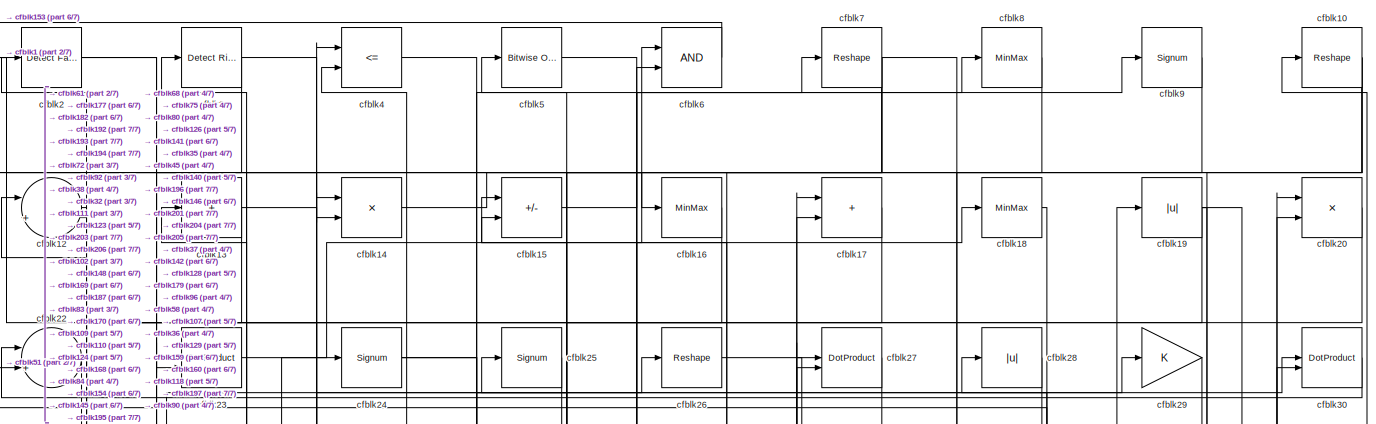
[diagram: root canvas - part 1/7, full width, top band]
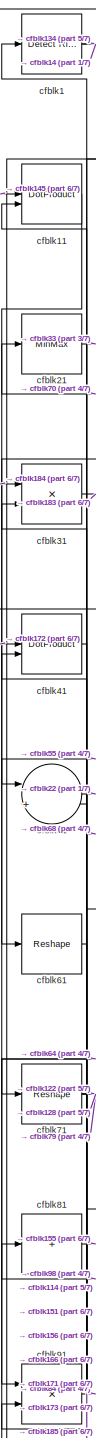
[diagram: root canvas - part 2/7, top left region]
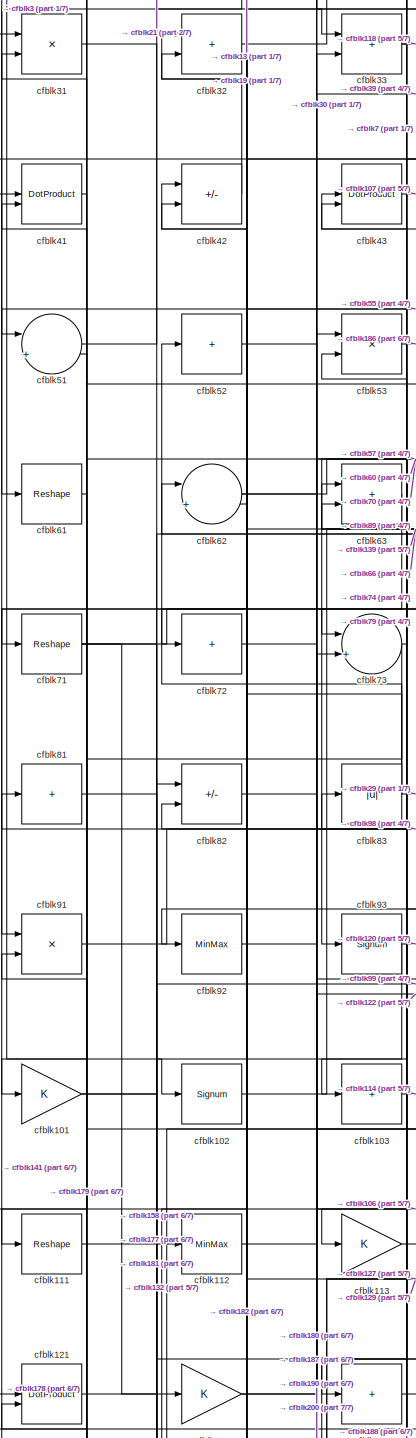
[diagram: root canvas - part 3/7, middle left region]
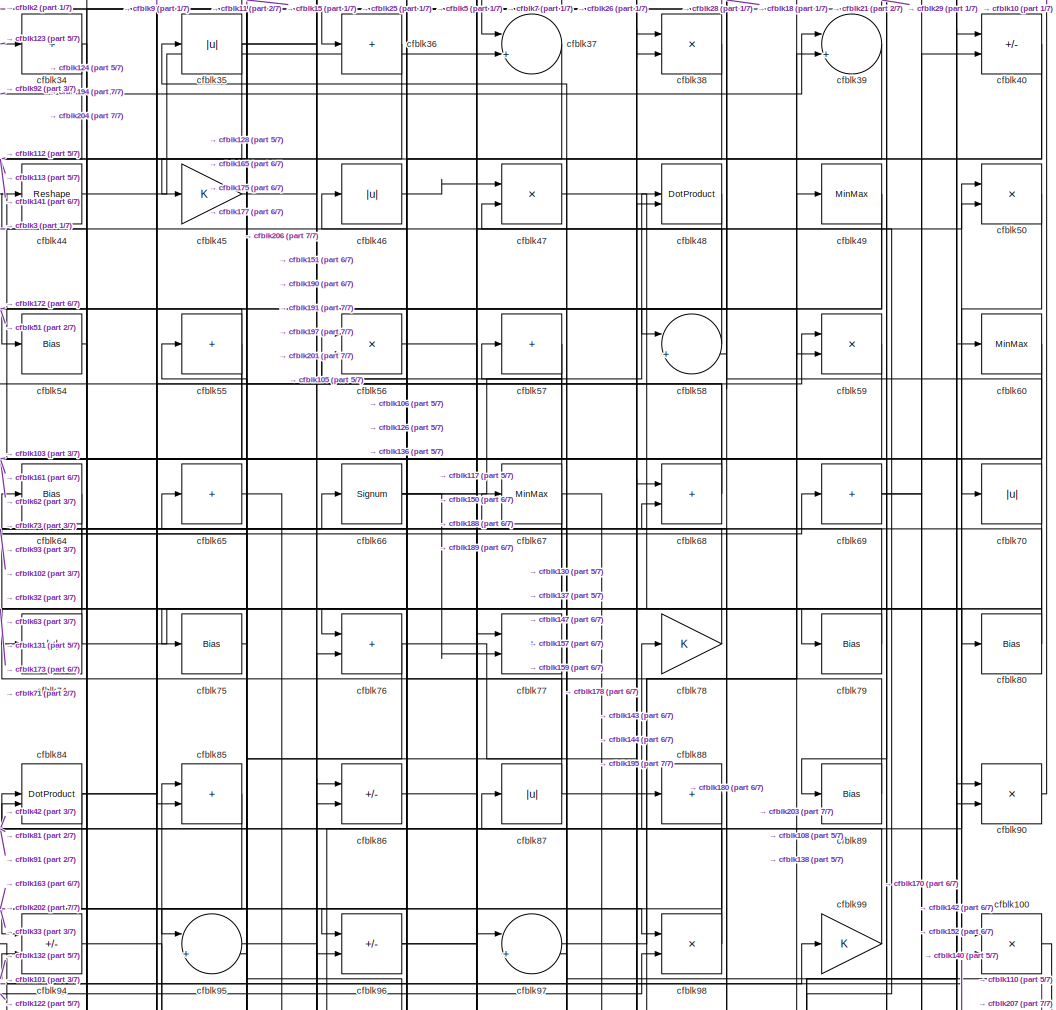
[diagram: root canvas - part 4/7, top center region]
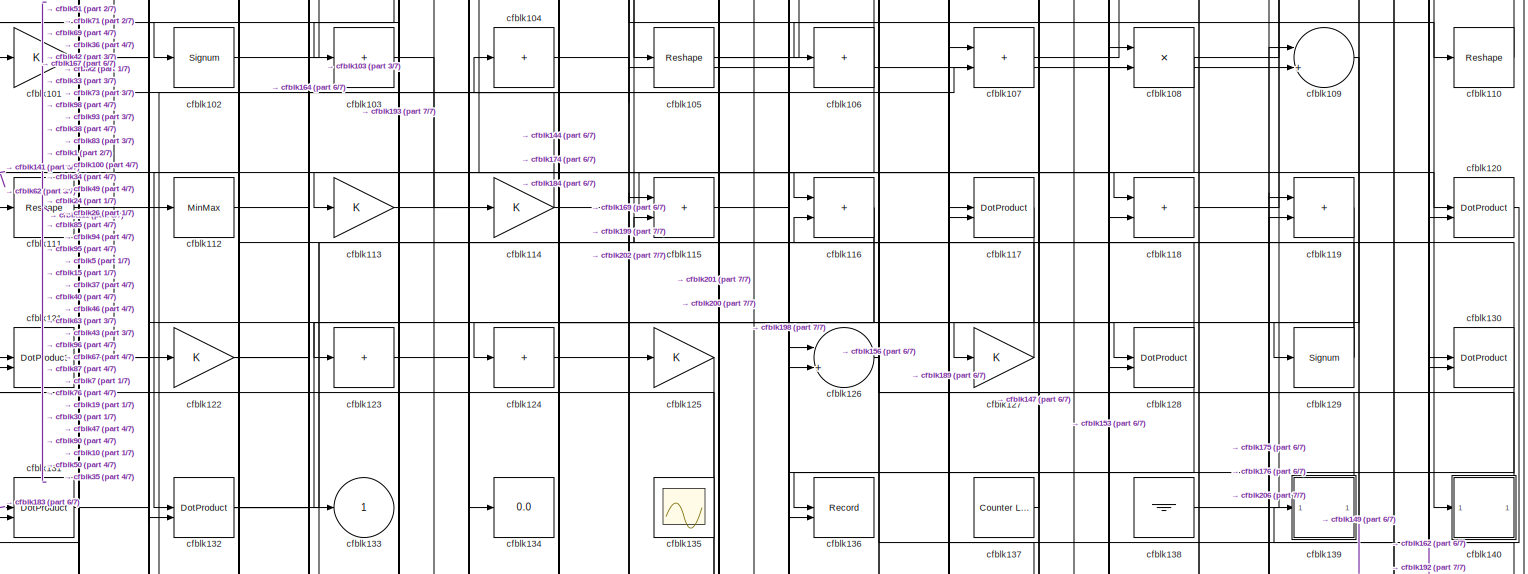
[diagram: root canvas - part 5/7, full width, middle band]
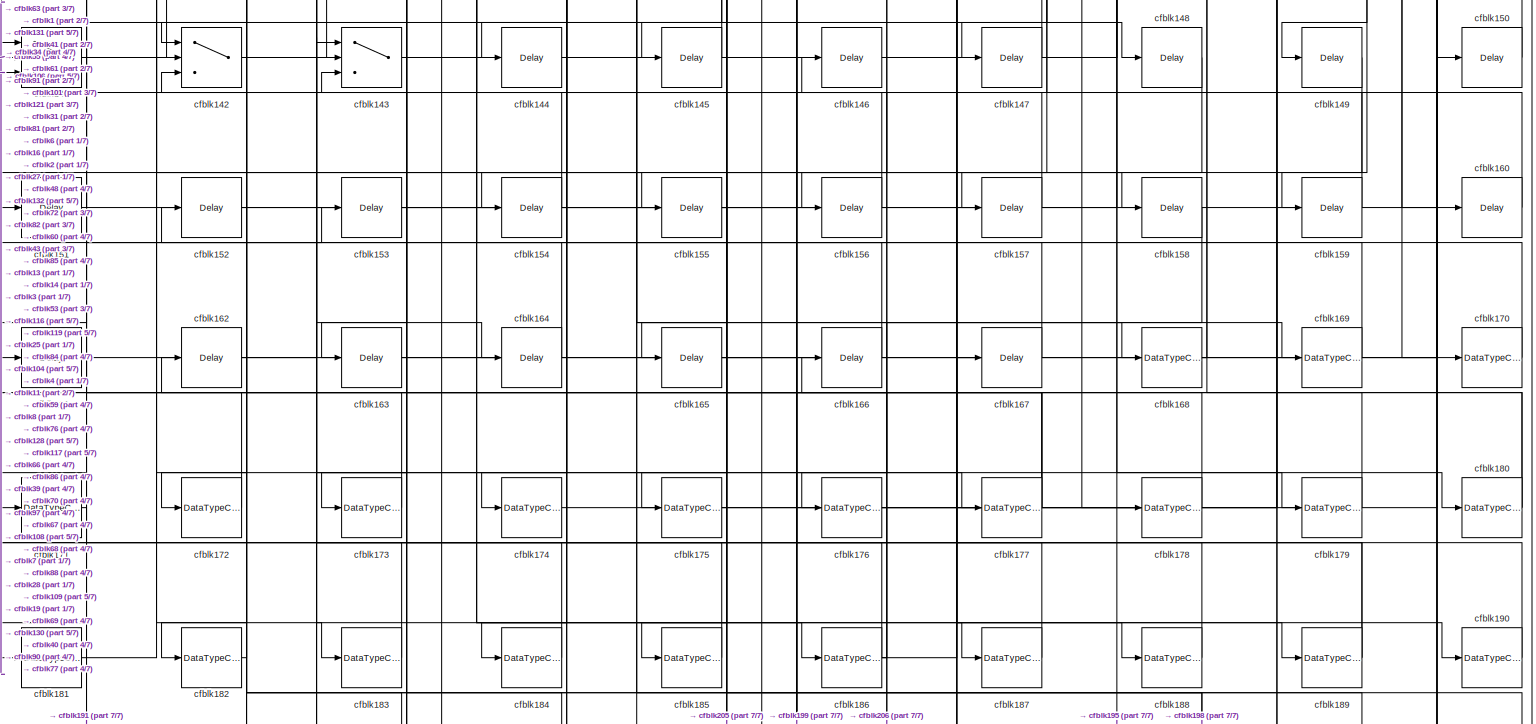
[diagram: root canvas - part 6/7, full width, bottom band]
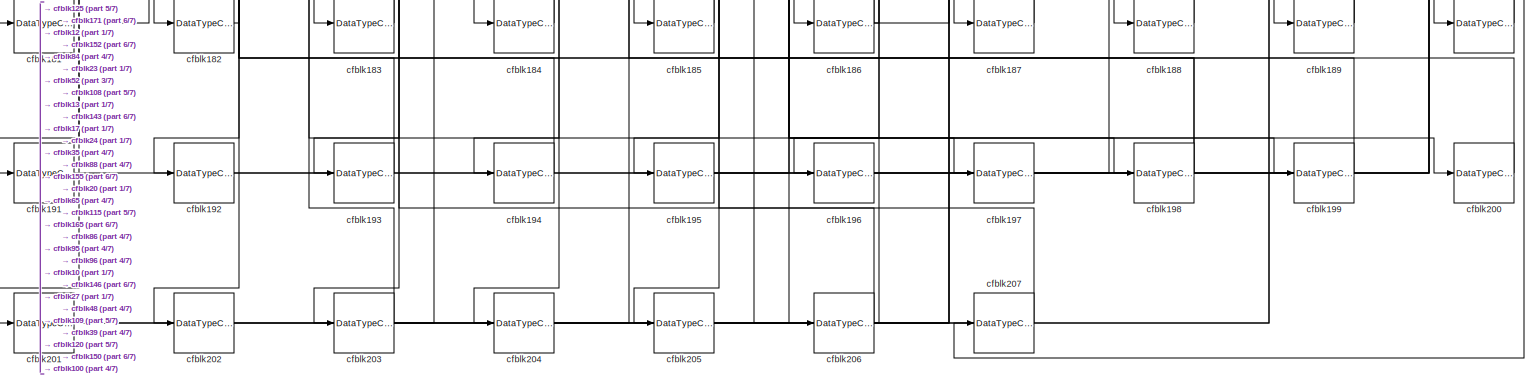
[diagram: root canvas - part 7/7, full width, bottom band]
MODEL slx_193301872688
KIND model
CONFIG AbsTol = auto
CONFIG EnableMultiTasking = off
CONFIG FixedStep = auto
CONFIG MaxStep = auto
CONFIG MinStep = auto
CONFIG RelTol = 1e-3
CONFIG SampleTimeConstraint = Unconstrained
CONFIG SolverName = VariableStepAuto
CONFIG StartTime = 0.0
CONFIG StopTime = 10.0
BLOCK [Reference] cfblk1  REF=hdlsllib/Logic and Bit
Operations/Detect Rise
Positive
  SourceBlock = hdlsllib/Logic and Bit\nOperations/Detect Rise\nPositive
  SourceType = Detect Rise Positive
BLOCK [Reshape] cfblk10
BLOCK [Product] cfblk100
  Inputs = */
  RndMeth = Zero
  SaturateOnIntegerOverflow = on
BLOCK [Gain] cfblk101
BLOCK [Signum] cfblk102
BLOCK [Sum] cfblk103
  IconShape = rectangular
  Inputs = +
BLOCK [Sum] cfblk104
  IconShape = rectangular
  Inputs = +
BLOCK [Reshape] cfblk105
BLOCK [Sum] cfblk106
  IconShape = rectangular
  Inputs = +
BLOCK [Sum] cfblk107
  IconShape = rectangular
BLOCK [Product] cfblk108
  Inputs = */
  RndMeth = Zero
  SaturateOnIntegerOverflow = on
BLOCK [Sum] cfblk109
  Inputs = |++
BLOCK [DotProduct] cfblk11
  OutDataTypeStr = Inherit: Inherit via internal rule
BLOCK [Reshape] cfblk110
BLOCK [Reshape] cfblk111
BLOCK [MinMax] cfblk112
BLOCK [Gain] cfblk113
BLOCK [Gain] cfblk114
BLOCK [Sum] cfblk115
  IconShape = rectangular
BLOCK [Sum] cfblk116
  IconShape = rectangular
BLOCK [DotProduct] cfblk117
  OutDataTypeStr = Inherit: Inherit via internal rule
BLOCK [Sum] cfblk118
  IconShape = rectangular
BLOCK [Sum] cfblk119
  IconShape = rectangular
BLOCK [Sum] cfblk12
  Inputs = |++
BLOCK [DotProduct] cfblk120
  OutDataTypeStr = Inherit: Inherit via internal rule
BLOCK [DotProduct] cfblk121
  OutDataTypeStr = Inherit: Inherit via internal rule
BLOCK [Gain] cfblk122
BLOCK [Sum] cfblk123
  IconShape = rectangular
  Inputs = +
BLOCK [Sum] cfblk124
  IconShape = rectangular
  Inputs = +
BLOCK [Gain] cfblk125
BLOCK [Sum] cfblk126
  Inputs = |++
BLOCK [Gain] cfblk127
BLOCK [DotProduct] cfblk128
  OutDataTypeStr = Inherit: Inherit via internal rule
BLOCK [Signum] cfblk129
BLOCK [Sum] cfblk13
  IconShape = rectangular
  Inputs = +
BLOCK [DotProduct] cfblk130
  OutDataTypeStr = Inherit: Inherit via internal rule
BLOCK [DotProduct] cfblk131
  OutDataTypeStr = Inherit: Inherit via internal rule
BLOCK [DotProduct] cfblk132
  OutDataTypeStr = Inherit: Inherit via internal rule
BLOCK [Outport] cfblk133
  VectorParamsAs1DForOutWhenUnconnected = off
BLOCK [Display] cfblk134
  Decimation = 1
BLOCK [Scope] cfblk135
  Floating = on
  NumInputPorts = 1
  ScopeSpecificationString = Simulink.scopes.TimeScopeBlockCfg('CurrentConfiguration', extmgr.ConfigurationSet(extmgr.Configuration('Core','General UI',true,'FigureColor',[0.156862745098039 0.156862745098039 0.156862745098039]),extmgr.Configuration('Core','Source UI',true),extmgr.Configuration('Sources','WiredSimulink',true,'DataLoggingVariableName','ScopeData1','DataLoggingSaveFormat','StructureWithTime','DataLoggingLimitDat...<+2713ch>
BLOCK [Record] cfblk136
  CompatibilityTag = XY
  FileSettingsInternal = {"entries":[{"content":{"excelSettings":{"content":{},"type":"Streamout.ExcelSettings"}},"type":"Streamout.FileSettingStorage","uuid":""}],"packageUris":["http:\/\/schema.mathworks.com\/mf0\/streamout_blocks\/R2020a"],"version":"1.0"}
  Layout = [1 1]
  SignalsInternal = {"entries":[{"content":{"signals":[{"content":{"blockPath":[],"dimensions":[1],"domain":"","lineColor":"#a2142f","plots":[1],"port":1,"sid":[""],"signalID":2796,"signalName":"cfblk40"},"type":"RecordBlkView.Signal","uuid":""},{"content":{"blockPath":[],"dimensions":[1],"domain":"","lineColor":"#139fff","plots":[1],"port":2,"sid":[""],"signalID":2800,"signalName":"cfblk130"},"type":"RecordBlkView.S...<+163ch>
  VisualizationBindings = {"xyplotplugin":{"info":[{"series":[{"bindingParametersList":[{"parameter":"X-Axis","signalID":2796,"signalName":"cfblk40"},{"parameter":"Y-Axis","signalID":2800,"signalName":"cfblk130"}],"seriesID":31174}],"subplotID":1}]}}
  st = -1
BLOCK [Reference] cfblk137  REF=hdlsllib/Sources/Counter
Limited
  SourceBlock = hdlsllib/Sources/Counter\nLimited
  SourceType = Counter Limited
BLOCK [Ground] cfblk138
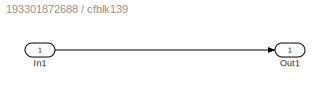
BLOCK [SubSystem] cfblk139
  LibrarySourceBlock = hdlsllib/Ports &\nSubsystems/Subsystem
BLOCK [Inport] cfblk139/In1
BLOCK [Outport] cfblk139/Out1
BLOCK [Product] cfblk14
  Inputs = */
  RndMeth = Zero
  SaturateOnIntegerOverflow = on
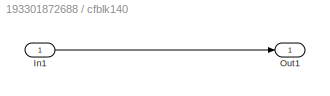
BLOCK [SubSystem] cfblk140
  LibrarySourceBlock = hdlsllib/Ports &\nSubsystems/Subsystem
BLOCK [Inport] cfblk140/In1
BLOCK [Outport] cfblk140/Out1
BLOCK [Switch] cfblk141
  InputSameDT = off
  SaturateOnIntegerOverflow = off
BLOCK [Switch] cfblk142
  InputSameDT = off
  SaturateOnIntegerOverflow = off
BLOCK [Switch] cfblk143
  InputSameDT = off
  SaturateOnIntegerOverflow = off
BLOCK [Delay] cfblk144
  InputPortMap = u0
  SampleTime = 1
BLOCK [Delay] cfblk145
  InputPortMap = u0
  SampleTime = 1
BLOCK [Delay] cfblk146
  InputPortMap = u0
  SampleTime = 1
BLOCK [Delay] cfblk147
  InputPortMap = u0
  SampleTime = 1
BLOCK [Delay] cfblk148
  InputPortMap = u0
  SampleTime = 1
BLOCK [Delay] cfblk149
  InputPortMap = u0
  SampleTime = 1
BLOCK [Sum] cfblk15
  IconShape = rectangular
  Inputs = +-
BLOCK [Delay] cfblk150
  InputPortMap = u0
  SampleTime = 1
BLOCK [Delay] cfblk151
  InputPortMap = u0
  SampleTime = 1
BLOCK [Delay] cfblk152
  InputPortMap = u0
  SampleTime = 1
BLOCK [Delay] cfblk153
  InputPortMap = u0
  SampleTime = 1
BLOCK [Delay] cfblk154
  InputPortMap = u0
  SampleTime = 1
BLOCK [Delay] cfblk155
  InputPortMap = u0
  SampleTime = 1
BLOCK [Delay] cfblk156
  InputPortMap = u0
  SampleTime = 1
BLOCK [Delay] cfblk157
  InputPortMap = u0
  SampleTime = 1
BLOCK [Delay] cfblk158
  InputPortMap = u0
  SampleTime = 1
BLOCK [Delay] cfblk159
  InputPortMap = u0
  SampleTime = 1
BLOCK [MinMax] cfblk16
BLOCK [Delay] cfblk160
  InputPortMap = u0
  SampleTime = 1
BLOCK [Delay] cfblk161
  InputPortMap = u0
  SampleTime = 1
BLOCK [Delay] cfblk162
  InputPortMap = u0
  SampleTime = 1
BLOCK [Delay] cfblk163
  InputPortMap = u0
  SampleTime = 1
BLOCK [Delay] cfblk164
  InputPortMap = u0
  SampleTime = 1
BLOCK [Delay] cfblk165
  InputPortMap = u0
  SampleTime = 1
BLOCK [Delay] cfblk166
  InputPortMap = u0
  SampleTime = 1
BLOCK [Delay] cfblk167
  InputPortMap = u0
  SampleTime = 1
BLOCK [DataTypeConversion] cfblk168
  OutDataTypeStr = uint8
  RndMeth = Floor
  SaturateOnIntegerOverflow = off
BLOCK [DataTypeConversion] cfblk169
  OutDataTypeStr = uint8
  RndMeth = Floor
  SaturateOnIntegerOverflow = off
BLOCK [Sum] cfblk17
  IconShape = rectangular
BLOCK [DataTypeConversion] cfblk170
  OutDataTypeStr = uint8
  RndMeth = Floor
  SaturateOnIntegerOverflow = off
BLOCK [DataTypeConversion] cfblk171
  OutDataTypeStr = uint8
  RndMeth = Floor
  SaturateOnIntegerOverflow = off
BLOCK [DataTypeConversion] cfblk172
  OutDataTypeStr = uint8
  RndMeth = Floor
  SaturateOnIntegerOverflow = off
BLOCK [DataTypeConversion] cfblk173
  OutDataTypeStr = uint8
  RndMeth = Floor
  SaturateOnIntegerOverflow = off
BLOCK [DataTypeConversion] cfblk174
  OutDataTypeStr = uint8
  RndMeth = Floor
  SaturateOnIntegerOverflow = off
BLOCK [DataTypeConversion] cfblk175
  OutDataTypeStr = uint8
  RndMeth = Floor
  SaturateOnIntegerOverflow = off
BLOCK [DataTypeConversion] cfblk176
  OutDataTypeStr = uint8
  RndMeth = Floor
  SaturateOnIntegerOverflow = off
BLOCK [DataTypeConversion] cfblk177
  RndMeth = Floor
  SaturateOnIntegerOverflow = off
BLOCK [DataTypeConversion] cfblk178
  OutDataTypeStr = uint8
  RndMeth = Floor
  SaturateOnIntegerOverflow = off
BLOCK [DataTypeConversion] cfblk179
  OutDataTypeStr = uint8
  RndMeth = Floor
  SaturateOnIntegerOverflow = off
BLOCK [MinMax] cfblk18
BLOCK [DataTypeConversion] cfblk180
  RndMeth = Floor
  SaturateOnIntegerOverflow = off
BLOCK [DataTypeConversion] cfblk181
  OutDataTypeStr = uint8
  RndMeth = Floor
  SaturateOnIntegerOverflow = off
BLOCK [DataTypeConversion] cfblk182
  OutDataTypeStr = uint8
  RndMeth = Floor
  SaturateOnIntegerOverflow = off
BLOCK [DataTypeConversion] cfblk183
  OutDataTypeStr = uint8
  RndMeth = Floor
  SaturateOnIntegerOverflow = off
BLOCK [DataTypeConversion] cfblk184
  OutDataTypeStr = uint8
  RndMeth = Floor
  SaturateOnIntegerOverflow = off
BLOCK [DataTypeConversion] cfblk185
  OutDataTypeStr = uint8
  RndMeth = Floor
  SaturateOnIntegerOverflow = off
BLOCK [DataTypeConversion] cfblk186
  RndMeth = Floor
  SaturateOnIntegerOverflow = off
BLOCK [DataTypeConversion] cfblk187
  OutDataTypeStr = uint8
  RndMeth = Floor
  SaturateOnIntegerOverflow = off
BLOCK [DataTypeConversion] cfblk188
  OutDataTypeStr = uint8
  RndMeth = Floor
  SaturateOnIntegerOverflow = off
BLOCK [DataTypeConversion] cfblk189
  RndMeth = Floor
  SaturateOnIntegerOverflow = off
BLOCK [Abs] cfblk19
  SaturateOnIntegerOverflow = off
BLOCK [DataTypeConversion] cfblk190
  OutDataTypeStr = uint8
  RndMeth = Floor
  SaturateOnIntegerOverflow = off
BLOCK [DataTypeConversion] cfblk191
  OutDataTypeStr = uint8
  RndMeth = Floor
  SaturateOnIntegerOverflow = off
BLOCK [DataTypeConversion] cfblk192
  OutDataTypeStr = uint8
  RndMeth = Floor
  SaturateOnIntegerOverflow = off
BLOCK [DataTypeConversion] cfblk193
  OutDataTypeStr = uint8
  RndMeth = Floor
  SaturateOnIntegerOverflow = off
BLOCK [DataTypeConversion] cfblk194
  OutDataTypeStr = uint8
  RndMeth = Floor
  SaturateOnIntegerOverflow = off
BLOCK [DataTypeConversion] cfblk195
  RndMeth = Floor
  SaturateOnIntegerOverflow = off
BLOCK [DataTypeConversion] cfblk196
  OutDataTypeStr = uint8
  RndMeth = Floor
  SaturateOnIntegerOverflow = off
BLOCK [DataTypeConversion] cfblk197
  OutDataTypeStr = uint8
  RndMeth = Floor
  SaturateOnIntegerOverflow = off
BLOCK [DataTypeConversion] cfblk198
  RndMeth = Floor
  SaturateOnIntegerOverflow = off
BLOCK [DataTypeConversion] cfblk199
  OutDataTypeStr = uint8
  RndMeth = Floor
  SaturateOnIntegerOverflow = off
BLOCK [Reference] cfblk2  REF=hdlsllib/Logic and Bit
Operations/Detect Fall
Negative
  SourceBlock = hdlsllib/Logic and Bit\nOperations/Detect Fall\nNegative
  SourceType = Detect Fall Negative
BLOCK [Product] cfblk20
  Inputs = */
  RndMeth = Zero
  SaturateOnIntegerOverflow = on
BLOCK [DataTypeConversion] cfblk200
  OutDataTypeStr = uint8
  RndMeth = Floor
  SaturateOnIntegerOverflow = off
BLOCK [DataTypeConversion] cfblk201
  RndMeth = Floor
  SaturateOnIntegerOverflow = off
BLOCK [DataTypeConversion] cfblk202
  OutDataTypeStr = uint8
  RndMeth = Floor
  SaturateOnIntegerOverflow = off
BLOCK [DataTypeConversion] cfblk203
  RndMeth = Floor
  SaturateOnIntegerOverflow = off
BLOCK [DataTypeConversion] cfblk204
  OutDataTypeStr = uint8
  RndMeth = Floor
  SaturateOnIntegerOverflow = off
BLOCK [DataTypeConversion] cfblk205
  OutDataTypeStr = uint8
  RndMeth = Floor
  SaturateOnIntegerOverflow = off
BLOCK [DataTypeConversion] cfblk206
  RndMeth = Floor
  SaturateOnIntegerOverflow = off
BLOCK [DataTypeConversion] cfblk207
  OutDataTypeStr = uint8
  RndMeth = Floor
  SaturateOnIntegerOverflow = off
BLOCK [MinMax] cfblk21
BLOCK [Sum] cfblk22
  Inputs = |++
BLOCK [DotProduct] cfblk23
  OutDataTypeStr = Inherit: Inherit via internal rule
BLOCK [Signum] cfblk24
BLOCK [Signum] cfblk25
BLOCK [Reshape] cfblk26
BLOCK [DotProduct] cfblk27
  OutDataTypeStr = Inherit: Inherit via internal rule
BLOCK [Abs] cfblk28
  SaturateOnIntegerOverflow = off
BLOCK [Gain] cfblk29
BLOCK [Reference] cfblk3  REF=hdlsllib/Logic and Bit
Operations/Detect Rise
Positive
  SourceBlock = hdlsllib/Logic and Bit\nOperations/Detect Rise\nPositive
  SourceType = Detect Rise Positive
BLOCK [DotProduct] cfblk30
  OutDataTypeStr = Inherit: Inherit via internal rule
BLOCK [Product] cfblk31
  Inputs = */
  RndMeth = Zero
  SaturateOnIntegerOverflow = on
BLOCK [Sum] cfblk32
  IconShape = rectangular
BLOCK [Sum] cfblk33
  IconShape = rectangular
BLOCK [Sum] cfblk34
  IconShape = rectangular
  Inputs = +
BLOCK [Abs] cfblk35
  SaturateOnIntegerOverflow = off
BLOCK [Sum] cfblk36
  IconShape = rectangular
  Inputs = +
BLOCK [Sum] cfblk37
  Inputs = |++
BLOCK [Product] cfblk38
  Inputs = */
  RndMeth = Zero
  SaturateOnIntegerOverflow = on
BLOCK [Sum] cfblk39
  Inputs = |++
BLOCK [RelationalOperator] cfblk4
  InputSameDT = off
  Operator = <=
  OutDataTypeStr = boolean
BLOCK [Sum] cfblk40
  IconShape = rectangular
  Inputs = +-
BLOCK [DotProduct] cfblk41
  OutDataTypeStr = Inherit: Inherit via internal rule
BLOCK [Sum] cfblk42
  IconShape = rectangular
  Inputs = +-
BLOCK [DotProduct] cfblk43
  OutDataTypeStr = Inherit: Inherit via internal rule
BLOCK [Reshape] cfblk44
BLOCK [Gain] cfblk45
BLOCK [Abs] cfblk46
  SaturateOnIntegerOverflow = off
BLOCK [Product] cfblk47
  Inputs = */
  RndMeth = Zero
  SaturateOnIntegerOverflow = on
BLOCK [DotProduct] cfblk48
  OutDataTypeStr = Inherit: Inherit via internal rule
BLOCK [MinMax] cfblk49
BLOCK [Reference] cfblk5  REF=simulink/Logic and Bit
Operations/Bitwise
Operator
  LibrarySourceBlock = hdlsllib/Logic and Bit\nOperations/Bitwise\nOperator
  SourceBlock = simulink/Logic and Bit\nOperations/Bitwise\nOperator
  SourceType = Bitwise Operator
BLOCK [Product] cfblk50
  Inputs = */
  RndMeth = Zero
  SaturateOnIntegerOverflow = on
BLOCK [Sum] cfblk51
  Inputs = |++
BLOCK [Sum] cfblk52
  IconShape = rectangular
  Inputs = +
BLOCK [Product] cfblk53
  Inputs = */
  RndMeth = Zero
  SaturateOnIntegerOverflow = on
BLOCK [Bias] cfblk54
  Bias = 0.0
  SaturateOnIntegerOverflow = off
BLOCK [Sum] cfblk55
  IconShape = rectangular
  Inputs = +
BLOCK [Product] cfblk56
  Inputs = */
  RndMeth = Zero
  SaturateOnIntegerOverflow = on
BLOCK [Sum] cfblk57
  IconShape = rectangular
  Inputs = +
BLOCK [Sum] cfblk58
  Inputs = |++
BLOCK [Product] cfblk59
  Inputs = */
  RndMeth = Zero
  SaturateOnIntegerOverflow = on
BLOCK [Logic] cfblk6
  AllPortsSameDT = off
  OutDataTypeStr = boolean
BLOCK [MinMax] cfblk60
BLOCK [Reshape] cfblk61
BLOCK [Sum] cfblk62
  Inputs = |++
BLOCK [Sum] cfblk63
  IconShape = rectangular
BLOCK [Bias] cfblk64
  Bias = 0.0
  SaturateOnIntegerOverflow = off
BLOCK [Sum] cfblk65
  IconShape = rectangular
  Inputs = +
BLOCK [Signum] cfblk66
BLOCK [MinMax] cfblk67
BLOCK [Sum] cfblk68
  IconShape = rectangular
BLOCK [Sum] cfblk69
  IconShape = rectangular
  Inputs = +
BLOCK [Reshape] cfblk7
BLOCK [Abs] cfblk70
  SaturateOnIntegerOverflow = off
BLOCK [Reshape] cfblk71
BLOCK [Sum] cfblk72
  IconShape = rectangular
  Inputs = +
BLOCK [Sum] cfblk73
  Inputs = |++
BLOCK [Abs] cfblk74
  SaturateOnIntegerOverflow = off
BLOCK [Bias] cfblk75
  Bias = 0.0
  SaturateOnIntegerOverflow = off
BLOCK [Sum] cfblk76
  IconShape = rectangular
BLOCK [Sum] cfblk77
  IconShape = rectangular
BLOCK [Gain] cfblk78
BLOCK [Bias] cfblk79
  Bias = 0.0
  SaturateOnIntegerOverflow = off
BLOCK [MinMax] cfblk8
BLOCK [Bias] cfblk80
  Bias = 0.0
  SaturateOnIntegerOverflow = off
BLOCK [Sum] cfblk81
  IconShape = rectangular
  Inputs = +
BLOCK [Sum] cfblk82
  IconShape = rectangular
  Inputs = +-
BLOCK [Abs] cfblk83
  SaturateOnIntegerOverflow = off
BLOCK [DotProduct] cfblk84
  OutDataTypeStr = Inherit: Inherit via internal rule
BLOCK [Sum] cfblk85
  IconShape = rectangular
BLOCK [Sum] cfblk86
  IconShape = rectangular
  Inputs = +-
BLOCK [Abs] cfblk87
  SaturateOnIntegerOverflow = off
BLOCK [Sum] cfblk88
  IconShape = rectangular
  Inputs = +
BLOCK [Bias] cfblk89
  Bias = 0.0
  SaturateOnIntegerOverflow = off
BLOCK [Signum] cfblk9
BLOCK [Product] cfblk90
  Inputs = */
  RndMeth = Zero
  SaturateOnIntegerOverflow = on
BLOCK [Product] cfblk91
  Inputs = */
  RndMeth = Zero
  SaturateOnIntegerOverflow = on
BLOCK [MinMax] cfblk92
BLOCK [Signum] cfblk93
BLOCK [Sum] cfblk94
  IconShape = rectangular
  Inputs = +-
BLOCK [Sum] cfblk95
  Inputs = |++
BLOCK [Sum] cfblk96
  IconShape = rectangular
  Inputs = +-
BLOCK [Sum] cfblk97
  Inputs = |++
BLOCK [Product] cfblk98
  Inputs = */
  RndMeth = Zero
  SaturateOnIntegerOverflow = on
BLOCK [Gain] cfblk99
LINE cfblk100:1 -> cfblk207:1
NET cfblk101:1 -> cfblk158:1, cfblk99:1
LINE cfblk102:1 -> cfblk66:1
LINE cfblk103:1 -> cfblk114:1
LINE cfblk104:1 -> cfblk169:1
NET cfblk105:1 -> cfblk126:2, cfblk50:1
NET cfblk106:1 -> cfblk141:3, cfblk62:1
LINE cfblk107:1 -> cfblk19:1
NET cfblk108:1 -> cfblk193:1, cfblk90:1
LINE cfblk109:1 -> cfblk149:1
NET cfblk10:1 -> cfblk128:2, cfblk129:1, cfblk196:1
LINE cfblk110:1 -> cfblk35:1
LINE cfblk111:1 -> cfblk132:1
LINE cfblk112:1 -> cfblk107:2
LINE cfblk113:1 -> cfblk100:2
NET cfblk114:1 -> cfblk116:1, cfblk51:2
LINE cfblk115:1 -> cfblk198:1
NET cfblk116:1 -> cfblk144:1, cfblk184:1
LINE cfblk117:1 -> cfblk133:1
LINE cfblk118:1 -> cfblk30:2
LINE cfblk119:1 -> cfblk174:1
LINE cfblk11:1 -> cfblk91:1
LINE cfblk120:1 -> cfblk139:1
LINE cfblk121:1 -> cfblk177:1
NET cfblk122:1 -> cfblk33:2, cfblk98:2
LINE cfblk123:1 -> cfblk34:1
LINE cfblk124:1 -> cfblk26:1
LINE cfblk125:1 -> cfblk201:1
LINE cfblk126:1 -> cfblk46:1
LINE cfblk127:1 -> cfblk42:2
NET cfblk128:1 -> cfblk156:1, cfblk95:2
NET cfblk129:1 -> cfblk127:1, cfblk83:1
LINE cfblk12:1 -> cfblk192:1
NET cfblk130:1 -> cfblk136:2, cfblk87:1
LINE cfblk131:1 -> cfblk69:1
NET cfblk132:1 -> cfblk164:1, cfblk73:2, cfblk85:1, cfblk94:2
LINE cfblk137:1 -> cfblk67:1
LINE cfblk138:1 -> cfblk47:2
LINE cfblk139/In1:1 -> cfblk139/Out1:1
LINE cfblk139:1 -> cfblk63:1
NET cfblk13:1 -> cfblk148:1, cfblk92:1
LINE cfblk140/In1:1 -> cfblk140/Out1:1
LINE cfblk140:1 -> cfblk15:1
LINE cfblk141:1 -> cfblk6:2
LINE cfblk142:1 -> cfblk60:1
LINE cfblk143:1 -> cfblk88:1
LINE cfblk144:1 -> cfblk68:1
LINE cfblk145:1 -> cfblk11:1
LINE cfblk146:1 -> cfblk27:2
LINE cfblk147:1 -> cfblk116:2
LINE cfblk148:1 -> cfblk185:1
LINE cfblk149:1 -> cfblk181:1
LINE cfblk14:1 -> cfblk16:1
LINE cfblk150:1 -> cfblk77:1
LINE cfblk151:1 -> cfblk76:2
LINE cfblk152:1 -> cfblk90:2
LINE cfblk153:1 -> cfblk108:1
LINE cfblk154:1 -> cfblk14:1
LINE cfblk155:1 -> cfblk205:1
LINE cfblk156:1 -> cfblk91:2
LINE cfblk157:1 -> cfblk84:2
LINE cfblk158:1 -> cfblk176:1
LINE cfblk159:1 -> cfblk97:2
LINE cfblk15:1 -> cfblk8:1
LINE cfblk160:1 -> cfblk142:2
LINE cfblk161:1 -> cfblk143:1
LINE cfblk162:1 -> cfblk130:2
LINE cfblk163:1 -> cfblk40:1
LINE cfblk164:1 -> cfblk142:3
LINE cfblk165:1 -> cfblk199:1
LINE cfblk166:1 -> cfblk1:1
LINE cfblk167:1 -> cfblk131:2
LINE cfblk168:1 -> cfblk28:1
LINE cfblk169:1 -> cfblk4:1
LINE cfblk16:1 -> cfblk182:1
LINE cfblk170:1 -> cfblk4:2
LINE cfblk171:1 -> cfblk191:1
LINE cfblk172:1 -> cfblk41:1
LINE cfblk173:1 -> cfblk41:2
LINE cfblk174:1 -> cfblk130:1
LINE cfblk175:1 -> cfblk119:1
LINE cfblk176:1 -> cfblk119:2
NET cfblk177:1 -> cfblk162:1, cfblk2:1, cfblk55:1
LINE cfblk178:1 -> cfblk121:1
LINE cfblk179:1 -> cfblk121:2
LINE cfblk17:1 -> cfblk203:1
NET cfblk180:1 -> cfblk43:2, cfblk68:2
LINE cfblk181:1 -> cfblk82:1
LINE cfblk182:1 -> cfblk82:2
LINE cfblk183:1 -> cfblk131:1
LINE cfblk184:1 -> cfblk31:1
LINE cfblk185:1 -> cfblk31:2
NET cfblk186:1 -> cfblk143:2, cfblk166:1, cfblk167:1
LINE cfblk187:1 -> cfblk53:1
LINE cfblk188:1 -> cfblk53:2
NET cfblk189:1 -> cfblk104:1, cfblk117:1
LINE cfblk18:1 -> cfblk58:1
LINE cfblk190:1 -> cfblk86:1
LINE cfblk191:1 -> cfblk86:2
LINE cfblk192:1 -> cfblk120:2
LINE cfblk193:1 -> cfblk12:1
LINE cfblk194:1 -> cfblk12:2
NET cfblk195:1 -> cfblk150:1, cfblk48:2
LINE cfblk196:1 -> cfblk20:1
LINE cfblk197:1 -> cfblk20:2
NET cfblk198:1 -> cfblk143:3, cfblk152:1
LINE cfblk199:1 -> cfblk115:1
NET cfblk19:1 -> cfblk159:1, cfblk160:1, cfblk72:1
NET cfblk1:1 -> cfblk134:1, cfblk14:2
LINE cfblk200:1 -> cfblk115:2
NET cfblk201:1 -> cfblk27:1, cfblk96:2
LINE cfblk202:1 -> cfblk125:1
NET cfblk203:1 -> cfblk23:1, cfblk24:1, cfblk39:2
LINE cfblk204:1 -> cfblk17:1
LINE cfblk205:1 -> cfblk17:2
NET cfblk206:1 -> cfblk109:1, cfblk13:1, cfblk146:1
LINE cfblk207:1 -> cfblk65:1
LINE cfblk20:1 -> cfblk195:1
LINE cfblk21:1 -> cfblk33:1
LINE cfblk22:1 -> cfblk61:1
LINE cfblk23:1 -> cfblk6:1
NET cfblk24:1 -> cfblk109:2, cfblk110:1
LINE cfblk25:1 -> cfblk154:1
LINE cfblk26:1 -> cfblk37:1
LINE cfblk27:1 -> cfblk142:1
LINE cfblk28:1 -> cfblk96:1
LINE cfblk29:1 -> cfblk36:1
NET cfblk2:1 -> cfblk118:1, cfblk38:2
LINE cfblk30:1 -> cfblk22:1
LINE cfblk31:1 -> cfblk183:1
LINE cfblk32:1 -> cfblk30:1
NET cfblk33:1 -> cfblk118:2, cfblk98:1
NET cfblk34:1 -> cfblk141:2, cfblk54:1
NET cfblk35:1 -> cfblk194:1, cfblk59:2, cfblk7:1
LINE cfblk36:1 -> cfblk112:1
LINE cfblk37:1 -> cfblk106:1
LINE cfblk38:1 -> cfblk113:1
LINE cfblk39:1 -> cfblk147:1
NET cfblk3:1 -> cfblk102:1, cfblk187:1
NET cfblk40:1 -> cfblk136:1, cfblk58:2
LINE cfblk41:1 -> cfblk171:1
LINE cfblk42:1 -> cfblk32:1
LINE cfblk43:1 -> cfblk107:1
LINE cfblk44:1 -> cfblk37:2
LINE cfblk45:1 -> cfblk18:1
LINE cfblk46:1 -> cfblk47:1
LINE cfblk47:1 -> cfblk100:1
LINE cfblk48:1 -> cfblk172:1
NET cfblk49:1 -> cfblk124:1, cfblk76:1
LINE cfblk4:1 -> cfblk168:1
LINE cfblk50:1 -> cfblk140:1
LINE cfblk51:1 -> cfblk22:2
LINE cfblk52:1 -> cfblk200:1
LINE cfblk53:1 -> cfblk186:1
LINE cfblk54:1 -> cfblk74:1
NET cfblk55:1 -> cfblk161:1, cfblk51:1, cfblk73:1
LINE cfblk56:1 -> cfblk97:1
NET cfblk57:1 -> cfblk56:2, cfblk93:1
LINE cfblk58:1 -> cfblk3:1
LINE cfblk59:1 -> cfblk165:1
LINE cfblk5:1 -> cfblk126:1
NET cfblk60:1 -> cfblk103:1, cfblk85:2
LINE cfblk61:1 -> cfblk151:1
NET cfblk62:1 -> cfblk70:1, cfblk89:1
LINE cfblk63:1 -> cfblk141:1
LINE cfblk64:1 -> cfblk71:1
LINE cfblk65:1 -> cfblk206:1
NET cfblk66:1 -> cfblk188:1, cfblk48:1, cfblk77:2
NET cfblk67:1 -> cfblk173:1, cfblk178:1, cfblk57:1, cfblk94:1
NET cfblk68:1 -> cfblk11:2, cfblk15:2
NET cfblk69:1 -> cfblk170:1, cfblk40:2
LINE cfblk6:1 -> cfblk153:1
NET cfblk70:1 -> cfblk157:1, cfblk21:1
NET cfblk71:1 -> cfblk122:1, cfblk128:1, cfblk79:1
LINE cfblk72:1 -> cfblk190:1
NET cfblk73:1 -> cfblk101:1, cfblk43:1
NET cfblk74:1 -> cfblk32:2, cfblk80:1
LINE cfblk75:1 -> cfblk25:1
NET cfblk76:1 -> cfblk108:2, cfblk95:1
LINE cfblk77:1 -> cfblk175:1
LINE cfblk78:1 -> cfblk44:1
LINE cfblk79:1 -> cfblk63:2
NET cfblk7:1 -> cfblk111:1, cfblk123:1, cfblk179:1, cfblk23:2
NET cfblk80:1 -> cfblk5:1, cfblk75:1
LINE cfblk81:1 -> cfblk155:1
LINE cfblk82:1 -> cfblk180:1
NET cfblk83:1 -> cfblk29:1, cfblk52:1, cfblk62:2
NET cfblk84:1 -> cfblk202:1, cfblk59:1, cfblk9:1
LINE cfblk85:1 -> cfblk163:1
LINE cfblk86:1 -> cfblk189:1
NET cfblk87:1 -> cfblk38:1, cfblk56:1
LINE cfblk88:1 -> cfblk204:1
LINE cfblk89:1 -> cfblk64:1
LINE cfblk8:1 -> cfblk145:1
LINE cfblk90:1 -> cfblk10:1
LINE cfblk91:1 -> cfblk84:1
LINE cfblk92:1 -> cfblk39:1
NET cfblk93:1 -> cfblk120:1, cfblk132:2
LINE cfblk94:1 -> cfblk105:1
LINE cfblk95:1 -> cfblk197:1
NET cfblk96:1 -> cfblk117:2, cfblk50:2
LINE cfblk97:1 -> cfblk49:1
NET cfblk98:1 -> cfblk42:1, cfblk81:1
LINE cfblk99:1 -> cfblk78:1
LINE cfblk9:1 -> cfblk45:1
note: NET lines group one-source signal fan-out (src -> all destinations, sorted); 1:1 wires keep LINE
